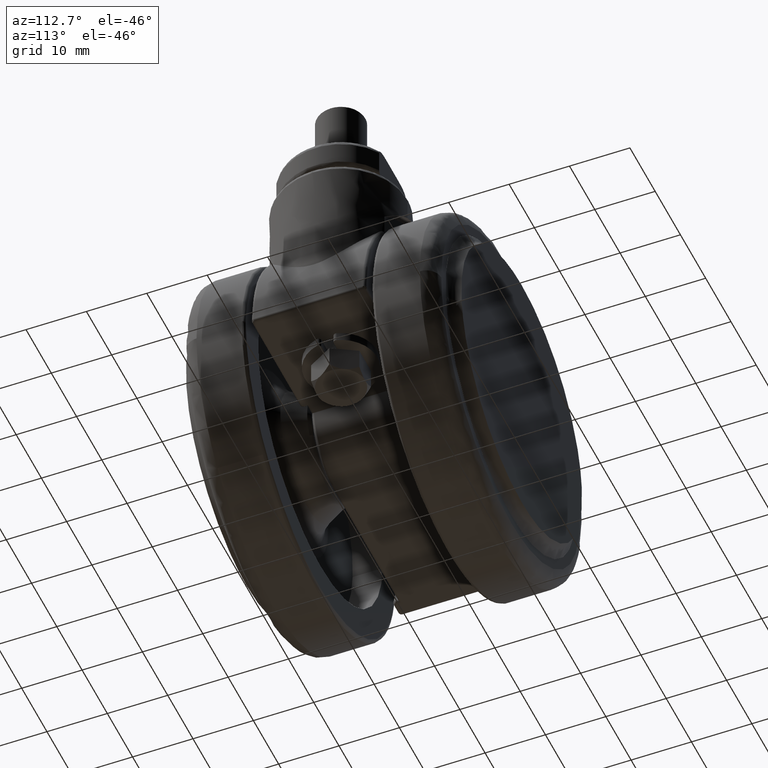
[diagram: clean part render]
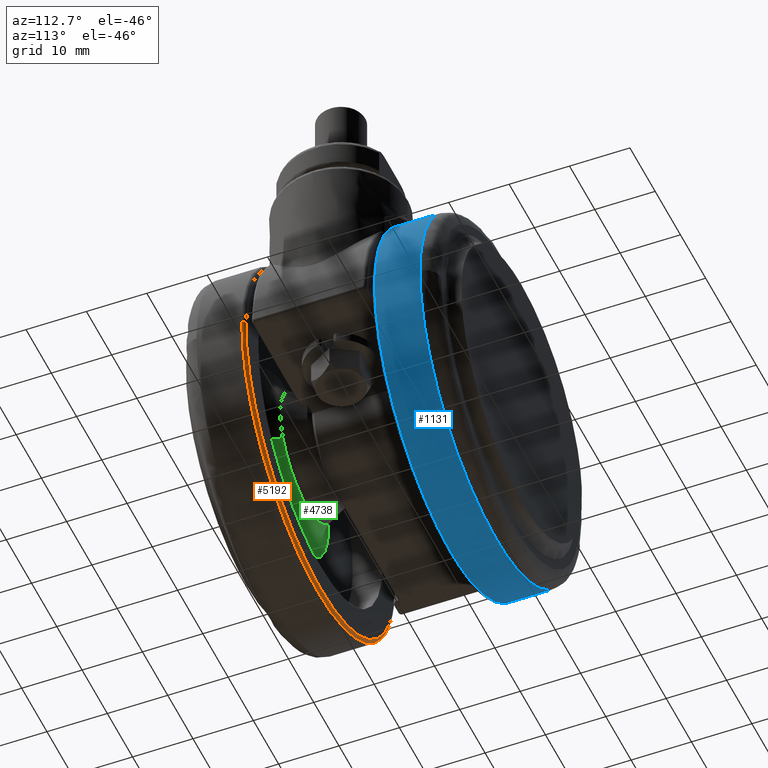
[diagram: same view with three faces highlighted in distinct colors, each labeled with its STEP entity id]
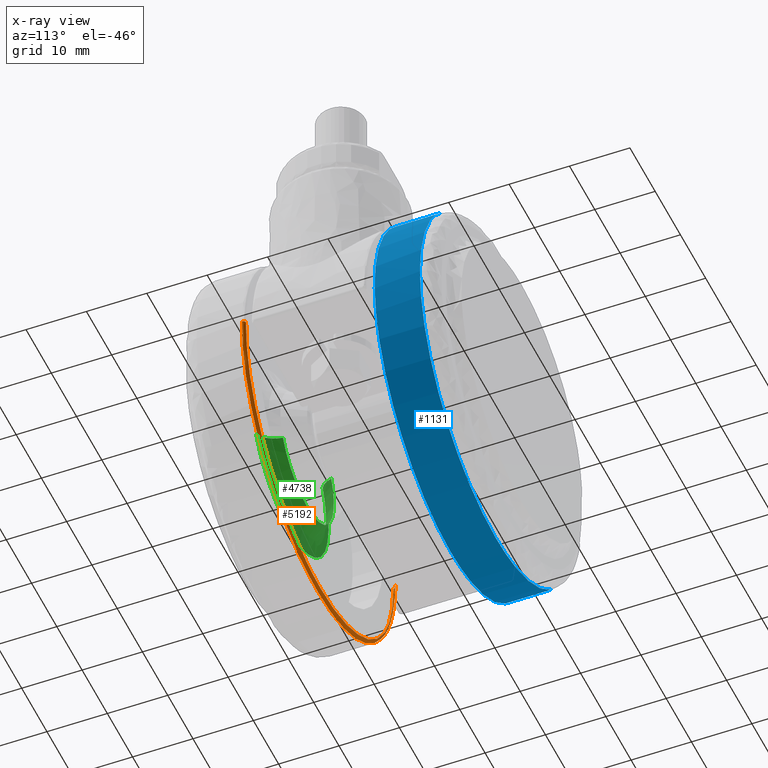
[diagram: x-ray of the same camera — body ghosted, the three highlighted faces saturated]
A machine part, auxiliary view with three faces highlighted in distinct colors.
The next image is the same camera in x-ray (body ghosted, the three faces saturated) — at least one of them is partly hidden behind the body in this view.
Their STEP definitions:

[orange] entity #5192 — the highlighted face is a freeform B-spline surface patch.
#5013=CARTESIAN_POINT('',(29.490683594620560,-10.500000000000000,0.741337815947020));
#5014=VERTEX_POINT('',#5013);
#5028=CARTESIAN_POINT('',(0.0,-10.500000000000000,-29.500000000000600));
#5029=VERTEX_POINT('',#5028);
#5030=CARTESIAN_POINT('',(29.490683594620563,-10.500000000000002,0.741337815947020));
#5031=CARTESIAN_POINT('',(29.500000010699718,-10.499999999999995,0.370727447957652));
#5032=CARTESIAN_POINT('',(29.500000010632071,-10.500000000000000,2.672554E-010));
#5033=CARTESIAN_POINT('',(29.500000005249529,-10.499999999999998,-29.499999999868656));
#5034=CARTESIAN_POINT('',(0.0,-10.500000000000000,-29.500000000000600));
#5042=(BOUNDED_CURVE()B_SPLINE_CURVE(2,(#5030,#5031,#5032,#5033,#5034),.UNSPECIFIED.,.F.,.U.)B_SPLINE_CURVE_WITH_KNOTS((3,2,3),(0.245579891769227,0.250000000000000,0.500000000000000),.UNSPECIFIED.)CURVE()GEOMETRIC_REPRESENTATION_ITEM()RATIONAL_B_SPLINE_CURVE((0.989826157680263,0.994821521091140,1.0,0.707106781186548,1.0))REPRESENTATION_ITEM(''));
#5043=EDGE_CURVE('',#5014,#5029,#5042,.T.);
#5045=CARTESIAN_POINT('',(-29.490683594620560,-10.500000000000000,-0.741337815947009));
#5046=VERTEX_POINT('',#5045);
#5047=CARTESIAN_POINT('',(0.0,-10.500000000000000,-29.500000000000600));
#5048=CARTESIAN_POINT('',(-28.767747352616720,-10.500000000000002,-29.500000000135913));
#5049=CARTESIAN_POINT('',(-29.490683594620567,-10.499999999999998,-0.741337815947009));
#5057=(BOUNDED_CURVE()B_SPLINE_CURVE(2,(#5047,#5048,#5049),.UNSPECIFIED.,.F.,.U.)B_SPLINE_CURVE_WITH_KNOTS((3,3),(0.500000000000000,0.745579891769227),.UNSPECIFIED.)CURVE()GEOMETRIC_REPRESENTATION_ITEM()RATIONAL_B_SPLINE_CURVE((1.0,0.712285260095408,0.989826157680263))REPRESENTATION_ITEM(''));
#5058=EDGE_CURVE('',#5029,#5046,#5057,.T.);
#5084=CARTESIAN_POINT('',(29.968233406904883,-11.034862092272224,1.592275535265795));
#5085=CARTESIAN_POINT('',(29.978709941632765,-11.034862092272233,1.175515234869906));
#5086=CARTESIAN_POINT('',(30.743181500438990,-11.034862092272235,-29.235436932760621));
#5087=CARTESIAN_POINT('',(0.753872283839183,-11.034862092272228,-29.989309216599803));
#5088=CARTESIAN_POINT('',(-29.235436932760621,-11.034862092272235,-30.743181500438990));
#5089=CARTESIAN_POINT('',(-29.999908491565389,-11.034862092272228,-0.332229332866151));
#5090=CARTESIAN_POINT('',(-30.010385026291861,-11.034862092272224,0.084530967473374));
#5091=CARTESIAN_POINT('',(30.008279049219894,-10.461332159253640,1.594403244820323));
#5092=CARTESIAN_POINT('',(30.018769583423705,-10.461332159253638,1.177086040262145));
#5093=CARTESIAN_POINT('',(30.784262682411775,-10.461332159253640,-29.274503361349712));
#5094=CARTESIAN_POINT('',(0.754879660531026,-10.461332159253640,-30.029383021880751));
#5095=CARTESIAN_POINT('',(-29.274503361349712,-10.461332159253640,-30.784262682411775));
#5096=CARTESIAN_POINT('',(-30.039996460336322,-10.461332159253640,-0.332673280857674));
#5097=CARTESIAN_POINT('',(-30.050486994538733,-10.461332159253640,0.084643923644063));
#5098=CARTESIAN_POINT('',(29.435318222107746,-10.501203824725025,1.563960625954904));
#5099=CARTESIAN_POINT('',(29.445608456082937,-10.501203824725028,1.154611436166902));
#5100=CARTESIAN_POINT('',(30.196485669953908,-10.501203824725026,-28.715552825342474));
#5101=CARTESIAN_POINT('',(0.740466422305715,-10.501203824725026,-29.456019247648204));
#5102=CARTESIAN_POINT('',(-28.715552825342474,-10.501203824725026,-30.196485669953908));
#5103=CARTESIAN_POINT('',(-29.466430039212035,-10.501203824725026,-0.326321408501193));
#5104=CARTESIAN_POINT('',(-29.476720273185833,-10.501203824725026,0.083027781231445));
#5112=(BOUNDED_SURFACE()B_SPLINE_SURFACE(2,2,((#5084,#5091,#5098),(#5085,#5092,#5099),(#5086,#5093,#5100),(#5087,#5094,#5101),(#5088,#5095,#5102),(#5089,#5096,#5103),(#5090,#5097,#5104)),.UNSPECIFIED.,.F.,.F.,.U.)B_SPLINE_SURFACE_WITH_KNOTS((3,1,2,1,3),(3,3),(0.0,0.994072227077429,50.697683575064197,100.401294923051000,101.395367149991600),(0.0,0.911363569842717),.UNSPECIFIED.)GEOMETRIC_REPRESENTATION_ITEM()RATIONAL_B_SPLINE_SURFACE(((0.921564716011958,0.606435493453131,0.926697837807704),(0.916228828699381,0.602924213779344,0.921332229566160),(0.644098575789570,0.423848950436964,0.647686209279166),(0.910892941386805,0.599412934105556,0.915966621324616),(0.644098575789570,0.423848950436964,0.647686209279166),(0.916228828698647,0.602924213778861,0.921332229565421),(0.921564716010489,0.606435493452165,0.926697837806227)))REPRESENTATION_ITEM('')SURFACE());
#5113=ORIENTED_EDGE('',*,*,#5043,.F.);
#5114=CARTESIAN_POINT('',(29.990525678498560,-10.999999999857030,0.753902863317289));
#5115=VERTEX_POINT('',#5114);
#5116=CARTESIAN_POINT('',(29.990525678498560,-10.999999999857028,0.753902863317289));
#5117=CARTESIAN_POINT('',(29.990525678354615,-10.500000010769085,0.753902863354081));
#5118=CARTESIAN_POINT('',(29.490683594620556,-10.500000000000000,0.741337815947020));
#5126=(BOUNDED_CURVE()B_SPLINE_CURVE(2,(#5116,#5117,#5118),.UNSPECIFIED.,.F.,.U.)B_SPLINE_CURVE_WITH_KNOTS((3,3),(-1.723441281690360,-0.263586901219039),.UNSPECIFIED.)CURVE()GEOMETRIC_REPRESENTATION_ITEM()RATIONAL_B_SPLINE_CURVE((0.883897567034902,0.626638731218558,0.888510401065265))REPRESENTATION_ITEM(''));
#5127=EDGE_CURVE('',#5115,#5014,#5126,.T.);
#5128=ORIENTED_EDGE('',*,*,#5127,.F.);
#5129=CARTESIAN_POINT('',(21.761231919898879,-10.999999999927139,-20.650636438821259));
#5130=VERTEX_POINT('',#5129);
#5131=CARTESIAN_POINT('',(29.990525678498564,-10.999999999857028,0.753902863317289));
#5132=CARTESIAN_POINT('',(29.999999999999996,-10.999999999857900,0.377010963709972));
#5133=CARTESIAN_POINT('',(30.0,-10.999999999858799,-2.631466E-015));
#5134=CARTESIAN_POINT('',(29.999999999999996,-10.999999999887322,-11.968785714438784));
#5135=CARTESIAN_POINT('',(21.761231919898893,-10.999999999927153,-20.650636438821273));
#5143=(BOUNDED_CURVE()B_SPLINE_CURVE(2,(#5131,#5132,#5133,#5134,#5135),.UNSPECIFIED.,.F.,.U.)B_SPLINE_CURVE_WITH_KNOTS((3,2,3),(0.245579891769707,0.250000000000000,0.371049520889213),.UNSPECIFIED.)CURVE()GEOMETRIC_REPRESENTATION_ITEM()RATIONAL_B_SPLINE_CURVE((0.989826157681350,0.994821521091703,1.0,0.858181664763729,0.853699661796709))REPRESENTATION_ITEM(''));
#5144=EDGE_CURVE('',#5115,#5130,#5143,.T.);
#5145=ORIENTED_EDGE('',*,*,#5144,.T.);
#5146=CARTESIAN_POINT('',(0.0,-11.0,-30.0));
#5147=VERTEX_POINT('',#5146);
#5148=CARTESIAN_POINT('',(21.761231919898893,-10.999999999927153,-20.650636438821273));
#5149=CARTESIAN_POINT('',(12.889017858354073,-10.999999999970049,-30.000000000000004));
#5150=CARTESIAN_POINT('',(0.0,-11.0,-30.0));
#5158=(BOUNDED_CURVE()B_SPLINE_CURVE(2,(#5148,#5149,#5150),.UNSPECIFIED.,.F.,.U.)B_SPLINE_CURVE_WITH_KNOTS((3,3),(0.371049520889213,0.500000000000000),.UNSPECIFIED.)CURVE()GEOMETRIC_REPRESENTATION_ITEM()RATIONAL_B_SPLINE_CURVE((0.853699661796709,0.848925116422819,1.0))REPRESENTATION_ITEM(''));
#5159=EDGE_CURVE('',#5130,#5147,#5158,.T.);
#5160=ORIENTED_EDGE('',*,*,#5159,.T.);
#5161=CARTESIAN_POINT('',(-29.990525678498560,-10.999999999857030,-0.753902863317287));
#5162=VERTEX_POINT('',#5161);
#5163=CARTESIAN_POINT('',(0.0,-11.0,-30.0));
#5164=CARTESIAN_POINT('',(-29.255336285402727,-10.999999999928514,-30.0));
#5165=CARTESIAN_POINT('',(-29.990525678498564,-10.999999999857028,-0.753902863317287));
#5173=(BOUNDED_CURVE()B_SPLINE_CURVE(2,(#5163,#5164,#5165),.UNSPECIFIED.,.F.,.U.)B_SPLINE_CURVE_WITH_KNOTS((3,3),(0.500000000000000,0.745579891769707),.UNSPECIFIED.)CURVE()GEOMETRIC_REPRESENTATION_ITEM()RATIONAL_B_SPLINE_CURVE((1.0,0.712285260094844,0.989826157681350))REPRESENTATION_ITEM(''));
#5174=EDGE_CURVE('',#5147,#5162,#5173,.T.);
#5175=ORIENTED_EDGE('',*,*,#5174,.T.);
#5176=CARTESIAN_POINT('',(-29.990525678498567,-10.999999999857028,-0.753902863317287));
#5177=CARTESIAN_POINT('',(-29.990525678354611,-10.500000010769089,-0.753902863354074));
#5178=CARTESIAN_POINT('',(-29.490683594620570,-10.500000000000002,-0.741337815947009));
#5186=(BOUNDED_CURVE()B_SPLINE_CURVE(2,(#5176,#5177,#5178),.UNSPECIFIED.,.F.,.U.)B_SPLINE_CURVE_WITH_KNOTS((3,3),(-1.723441281690361,-0.263586901219044),.UNSPECIFIED.)CURVE()GEOMETRIC_REPRESENTATION_ITEM()RATIONAL_B_SPLINE_CURVE((0.883897567034902,0.626638731218559,0.888510401065263))REPRESENTATION_ITEM(''));
#5187=EDGE_CURVE('',#5162,#5046,#5186,.T.);
#5188=ORIENTED_EDGE('',*,*,#5187,.T.);
#5189=ORIENTED_EDGE('',*,*,#5058,.F.);
#5190=EDGE_LOOP('',(#5113,#5128,#5145,#5160,#5175,#5188,#5189));
#5191=FACE_OUTER_BOUND('',#5190,.T.);
#5192=ADVANCED_FACE('',(#5191),#5112,.T.);

[blue] entity #1131 — the highlighted face is a freeform B-spline surface patch.
#906=CARTESIAN_POINT('',(-21.761231919898879,10.999999999927139,-20.650636438821259));
#907=VERTEX_POINT('',#906);
#923=CARTESIAN_POINT('',(1.347067E-015,11.0,-30.0));
#924=VERTEX_POINT('',#923);
#925=CARTESIAN_POINT('',(-21.761231919898893,10.999999999927157,-20.650636438821273));
#926=CARTESIAN_POINT('',(-12.889017858354073,10.999999999970051,-30.000000000000004));
#927=CARTESIAN_POINT('',(1.347067E-015,11.0,-30.0));
#935=(BOUNDED_CURVE()B_SPLINE_CURVE(2,(#925,#926,#927),.UNSPECIFIED.,.F.,.U.)B_SPLINE_CURVE_WITH_KNOTS((3,3),(0.371049520889213,0.500000000000000),.UNSPECIFIED.)CURVE()GEOMETRIC_REPRESENTATION_ITEM()RATIONAL_B_SPLINE_CURVE((0.853699661796709,0.848925116422819,1.0))REPRESENTATION_ITEM(''));
#936=EDGE_CURVE('',#907,#924,#935,.T.);
#938=CARTESIAN_POINT('',(29.990525678498560,10.999999999857030,-0.753902863317287));
#939=VERTEX_POINT('',#938);
#940=CARTESIAN_POINT('',(1.347067E-015,11.0,-30.0));
#941=CARTESIAN_POINT('',(29.255336285402727,10.999999999928511,-30.0));
#942=CARTESIAN_POINT('',(29.990525678498564,10.999999999857028,-0.753902863317287));
#950=(BOUNDED_CURVE()B_SPLINE_CURVE(2,(#940,#941,#942),.UNSPECIFIED.,.F.,.U.)B_SPLINE_CURVE_WITH_KNOTS((3,3),(0.500000000000000,0.745579891769707),.UNSPECIFIED.)CURVE()GEOMETRIC_REPRESENTATION_ITEM()RATIONAL_B_SPLINE_CURVE((1.0,0.712285260094844,0.989826157681350))REPRESENTATION_ITEM(''));
#951=EDGE_CURVE('',#924,#939,#950,.T.);
#1002=CARTESIAN_POINT('',(21.761231919898879,10.999999999927130,20.650636438821259));
#1003=VERTEX_POINT('',#1002);
#1004=CARTESIAN_POINT('',(29.990525678498564,10.999999999857028,-0.753902863317287));
#1005=CARTESIAN_POINT('',(29.999999999999996,10.999999999857900,-0.377010963709973));
#1006=CARTESIAN_POINT('',(30.0,10.999999999858799,-3.289332E-016));
#1007=CARTESIAN_POINT('',(29.999999999999996,10.999999999887317,11.968785714438772));
#1008=CARTESIAN_POINT('',(21.761231919898893,10.999999999927150,20.650636438821273));
#1016=(BOUNDED_CURVE()B_SPLINE_CURVE(2,(#1004,#1005,#1006,#1007,#1008),.UNSPECIFIED.,.F.,.U.)B_SPLINE_CURVE_WITH_KNOTS((3,2,3),(0.745579891769707,0.750000000000000,0.871049520889213),.UNSPECIFIED.)CURVE()GEOMETRIC_REPRESENTATION_ITEM()RATIONAL_B_SPLINE_CURVE((0.989826157681350,0.994821521091703,1.0,0.858181664763729,0.853699661796709))REPRESENTATION_ITEM(''));
#1017=EDGE_CURVE('',#939,#1003,#1016,.T.);
#1051=CARTESIAN_POINT('',(-21.761231130368621,18.687500000279488,-20.650637270812609));
#1052=CARTESIAN_POINT('',(-1.110593859556006,18.687500000279481,-42.411868401181231));
#1053=CARTESIAN_POINT('',(20.650637270812620,18.687500000279481,-21.761231130368621));
#1054=CARTESIAN_POINT('',(42.411868401181231,18.687500000279481,-1.110593859556008));
#1055=CARTESIAN_POINT('',(21.761231130368628,18.687500000279481,20.650637270812609));
#1056=CARTESIAN_POINT('',(-21.761231130368621,10.807812499846470,-20.650637270812609));
#1057=CARTESIAN_POINT('',(-1.110593859556007,10.807812499846467,-42.411868401181231));
#1058=CARTESIAN_POINT('',(20.650637270812609,10.807812499846470,-21.761231130368621));
#1059=CARTESIAN_POINT('',(42.411868401181231,10.807812499846461,-1.110593859556008));
#1060=CARTESIAN_POINT('',(21.761231130368621,10.807812499846460,20.650637270812609));
#1068=(BOUNDED_SURFACE()B_SPLINE_SURFACE(2,1,((#1051,#1056),(#1052,#1057),(#1053,#1058),(#1054,#1059),(#1055,#1060)),.UNSPECIFIED.,.F.,.F.,.U.)B_SPLINE_SURFACE_WITH_KNOTS((3,2,3),(2,2),(0.0,49.705627484771391,99.411254969542782),(0.0,7.879687500433019),.UNSPECIFIED.)GEOMETRIC_REPRESENTATION_ITEM()RATIONAL_B_SPLINE_SURFACE(((1.0,1.0),(0.707106781186548,0.707106781186548),(1.0,1.0),(0.707106781186548,0.707106781186548),(1.0,1.0)))REPRESENTATION_ITEM('')SURFACE());
#1069=ORIENTED_EDGE('',*,*,#936,.F.);
#1070=CARTESIAN_POINT('',(-21.761231910157260,18.500000000139579,-20.650636449086779));
#1071=VERTEX_POINT('',#1070);
#1072=CARTESIAN_POINT('',(-21.761231910157260,18.500000000139579,-20.650636449086779));
#1073=CARTESIAN_POINT('',(-21.761231919898879,10.999999999927139,-20.650636438821259));
#1074=QUASI_UNIFORM_CURVE('',1,(#1072,#1073),.UNSPECIFIED.,.F.,.U.);
#1075=EDGE_CURVE('',#1071,#907,#1074,.T.);
#1076=ORIENTED_EDGE('',*,*,#1075,.F.);
#1077=CARTESIAN_POINT('',(2.265522E-015,18.500000000000000,-30.0));
#1078=VERTEX_POINT('',#1077);
#1079=CARTESIAN_POINT('',(-21.761231910157278,18.500000000139583,-20.650636449086800));
#1080=CARTESIAN_POINT('',(-12.889017849971932,18.500000000057831,-29.999999999999993));
#1081=CARTESIAN_POINT('',(2.265522E-015,18.500000000000000,-30.0));
#1089=(BOUNDED_CURVE()B_SPLINE_CURVE(2,(#1079,#1080,#1081),.UNSPECIFIED.,.F.,.U.)B_SPLINE_CURVE_WITH_KNOTS((3,3),(0.371049520960404,0.500000000000000),.UNSPECIFIED.)CURVE()GEOMETRIC_REPRESENTATION_ITEM()RATIONAL_B_SPLINE_CURVE((0.853699661791437,0.848925116506225,1.0))REPRESENTATION_ITEM(''));
#1090=EDGE_CURVE('',#1071,#1078,#1089,.T.);
#1091=ORIENTED_EDGE('',*,*,#1090,.T.);
#1092=CARTESIAN_POINT('',(30.0,18.500000000269171,-1.416014E-014));
#1093=VERTEX_POINT('',#1092);
#1094=CARTESIAN_POINT('',(2.265522E-015,18.500000000000000,-30.0));
#1095=CARTESIAN_POINT('',(29.999999999999975,18.500000000134591,-30.000000000000004));
#1096=CARTESIAN_POINT('',(29.999999999999996,18.500000000269175,-1.416014E-014));
#1104=(BOUNDED_CURVE()B_SPLINE_CURVE(2,(#1094,#1095,#1096),.UNSPECIFIED.,.F.,.U.)B_SPLINE_CURVE_WITH_KNOTS((3,3),(0.500000000000000,0.750000000000000),.UNSPECIFIED.)CURVE()GEOMETRIC_REPRESENTATION_ITEM()RATIONAL_B_SPLINE_CURVE((1.0,0.707106781186548,1.000000000000000))REPRESENTATION_ITEM(''));
#1105=EDGE_CURVE('',#1078,#1093,#1104,.T.);
#1106=ORIENTED_EDGE('',*,*,#1105,.T.);
#1107=CARTESIAN_POINT('',(21.761231910157271,18.500000000139561,20.650636449086779));
#1108=VERTEX_POINT('',#1107);
#1109=CARTESIAN_POINT('',(30.000000000000011,18.500000000269178,-1.416014E-014));
#1110=CARTESIAN_POINT('',(30.000000000000004,18.500000000215476,11.968785722641076));
#1111=CARTESIAN_POINT('',(21.761231910157274,18.500000000139565,20.650636449086807));
#1119=(BOUNDED_CURVE()B_SPLINE_CURVE(2,(#1109,#1110,#1111),.UNSPECIFIED.,.F.,.U.)B_SPLINE_CURVE_WITH_KNOTS((3,3),(0.750000000000000,0.871049520960404),.UNSPECIFIED.)CURVE()GEOMETRIC_REPRESENTATION_ITEM()RATIONAL_B_SPLINE_CURVE((1.0,0.858181664680323,0.853699661791437))REPRESENTATION_ITEM(''));
#1120=EDGE_CURVE('',#1093,#1108,#1119,.T.);
#1121=ORIENTED_EDGE('',*,*,#1120,.T.);
#1122=CARTESIAN_POINT('',(21.761231910157271,18.500000000139561,20.650636449086779));
#1123=CARTESIAN_POINT('',(21.761231919898879,10.999999999927130,20.650636438821259));
#1124=QUASI_UNIFORM_CURVE('',1,(#1122,#1123),.UNSPECIFIED.,.F.,.U.);
#1125=EDGE_CURVE('',#1108,#1003,#1124,.T.);
#1126=ORIENTED_EDGE('',*,*,#1125,.T.);
#1127=ORIENTED_EDGE('',*,*,#1017,.F.);
#1128=ORIENTED_EDGE('',*,*,#951,.F.);
#1129=EDGE_LOOP('',(#1069,#1076,#1091,#1106,#1121,#1126,#1127,#1128));
#1130=FACE_OUTER_BOUND('',#1129,.T.);
#1131=ADVANCED_FACE('',(#1130),#1068,.T.);

[green] entity #4738 — the highlighted face is a freeform B-spline surface patch.
#4511=CARTESIAN_POINT('',(-8.955159037467610,-12.736067977525090,-5.705065503577836));
#4512=VERTEX_POINT('',#4511);
#4518=CARTESIAN_POINT('',(-9.549915530811349,-12.736067977552500,4.641310067338404));
#4519=VERTEX_POINT('',#4518);
#4520=CARTESIAN_POINT('',(-8.955159037467610,-12.736067977525089,-5.705065503577836));
#4521=CARTESIAN_POINT('',(-10.618033988767447,-12.736067977534365,-3.094874675984306));
#4522=CARTESIAN_POINT('',(-10.618033988770220,-12.736067977542289,8.731863E-012));
#4523=CARTESIAN_POINT('',(-10.618033988772405,-12.736067977548547,2.443559668754254));
#4524=CARTESIAN_POINT('',(-9.549915530811349,-12.736067977552503,4.641310067338405));
#4532=(BOUNDED_CURVE()B_SPLINE_CURVE(2,(#4520,#4521,#4522,#4523,#4524),.UNSPECIFIED.,.F.,.U.)B_SPLINE_CURVE_WITH_KNOTS((3,2,3),(0.658049923285658,0.750000000000000,0.824283295446909),.UNSPECIFIED.)CURVE()GEOMETRIC_REPRESENTATION_ITEM()RATIONAL_B_SPLINE_CURVE((0.863791038911242,0.892273784243970,1.0,0.912971705969936,0.877661399761278))REPRESENTATION_ITEM(''));
#4533=EDGE_CURVE('',#4512,#4519,#4532,.T.);
#4593=CARTESIAN_POINT('',(9.549915530811347,-12.736067977552500,-4.641310067338403));
#4594=VERTEX_POINT('',#4593);
#4610=CARTESIAN_POINT('',(0.0,-12.736067977499680,-10.618033988749900));
#4611=VERTEX_POINT('',#4610);
#4612=CARTESIAN_POINT('',(9.549915530811347,-12.736067977552507,-4.641310067338403));
#4613=CARTESIAN_POINT('',(6.645195712419445,-12.736067977526092,-10.618033988755666));
#4614=CARTESIAN_POINT('',(0.0,-12.736067977499680,-10.618033988749900));
#4622=(BOUNDED_CURVE()B_SPLINE_CURVE(2,(#4612,#4613,#4614),.UNSPECIFIED.,.F.,.U.)B_SPLINE_CURVE_WITH_KNOTS((3,3),(0.324283295446909,0.500000000000000),.UNSPECIFIED.)CURVE()GEOMETRIC_REPRESENTATION_ITEM()RATIONAL_B_SPLINE_CURVE((0.877661399761278,0.794135075216612,1.0))REPRESENTATION_ITEM(''));
#4623=EDGE_CURVE('',#4594,#4611,#4622,.T.);
#4625=CARTESIAN_POINT('',(0.0,-12.736067977499680,-10.618033988749900));
#4626=CARTESIAN_POINT('',(-5.825252923263507,-12.736067977508373,-10.618033988748657));
#4627=CARTESIAN_POINT('',(-8.955159037467610,-12.736067977525089,-5.705065503577836));
#4635=(BOUNDED_CURVE()B_SPLINE_CURVE(2,(#4625,#4626,#4627),.UNSPECIFIED.,.F.,.U.)B_SPLINE_CURVE_WITH_KNOTS((3,3),(0.500000000000000,0.658049923285658),.UNSPECIFIED.)CURVE()GEOMETRIC_REPRESENTATION_ITEM()RATIONAL_B_SPLINE_CURVE((1.0,0.814832996942578,0.863791038911242))REPRESENTATION_ITEM(''));
#4636=EDGE_CURVE('',#4611,#4512,#4635,.T.);
#4644=CARTESIAN_POINT('',(9.579030117666942,-12.500096489598599,-4.328844926532332));
#4645=CARTESIAN_POINT('',(9.515200625888253,-12.500096489598603,-4.460179882831014));
#4646=CARTESIAN_POINT('',(4.857569801244086,-12.500096489598601,-14.043676848950883));
#4647=CARTESIAN_POINT('',(-4.593053523853398,-12.500096489598596,-9.450623325097483));
#4648=CARTESIAN_POINT('',(-14.043676848950881,-12.500096489598601,-4.857569801244092));
#4649=CARTESIAN_POINT('',(-9.386046024303814,-12.500096489598599,4.725927164881751));
#4650=CARTESIAN_POINT('',(-9.322216532522294,-12.500096489598596,4.857262121186261));
#4651=CARTESIAN_POINT('',(10.841745119391977,-15.673633334141709,-4.899476541813754));
#4652=CARTESIAN_POINT('',(10.769501575686174,-15.673633334141716,-5.048124171476244));
#4653=CARTESIAN_POINT('',(5.497898329770659,-15.673633334141714,-15.894924962665746));
#4654=CARTESIAN_POINT('',(-5.198513316447546,-15.673633334141710,-10.696411646218204));
#4655=CARTESIAN_POINT('',(-15.894924962665746,-15.673633334141714,-5.497898329770664));
#4656=CARTESIAN_POINT('',(-10.623321716746950,-15.673633334141707,5.348902461425602));
#4657=CARTESIAN_POINT('',(-10.551078173037945,-15.673633334141710,5.497550091094688));
#4658=CARTESIAN_POINT('',(13.994092181230304,-15.493207718104122,-6.324048906414646));
#4659=CARTESIAN_POINT('',(13.900843096421122,-15.493207718104125,-6.515917338028810));
#4660=CARTESIAN_POINT('',(7.096467882483990,-15.493207718104111,-20.516535178771807));
#4661=CARTESIAN_POINT('',(-6.710033648143914,-15.493207718104125,-13.806501530627907));
#4662=CARTESIAN_POINT('',(-20.516535178771807,-15.493207718104111,-7.096467882484000));
#4663=CARTESIAN_POINT('',(-13.712159964830454,-15.493207718104125,6.904149958267738));
#4664=CARTESIAN_POINT('',(-13.618910880017133,-15.493207718104125,7.096018389890417));
#4672=(BOUNDED_SURFACE()B_SPLINE_SURFACE(2,2,((#4644,#4651,#4658),(#4645,#4652,#4659),(#4646,#4653,#4660),(#4647,#4654,#4661),(#4648,#4655,#4662),(#4649,#4656,#4663),(#4650,#4657,#4664)),.UNSPECIFIED.,.F.,.F.,.U.)B_SPLINE_SURFACE_WITH_KNOTS((3,1,2,1,3),(3,3),(0.0,0.508677499748219,25.942552487474838,51.376427475201460,51.885104974972663),(0.0,6.250937243582712),.UNSPECIFIED.)GEOMETRIC_REPRESENTATION_ITEM()RATIONAL_B_SPLINE_SURFACE(((0.930664622544998,0.764952047805621,0.930290185592629),(0.925276046501690,0.760522952534102,0.924903777550492),(0.650458668289662,0.534639093683866,0.650196967398175),(0.919887470458383,0.756093857262583,0.919517369508356),(0.650458668289662,0.534639093683866,0.650196967398175),(0.925276046501934,0.760522952534302,0.924903777550736),(0.930664622545484,0.764952047806021,0.930290185593116)))REPRESENTATION_ITEM('')SURFACE());
#4673=ORIENTED_EDGE('',*,*,#4623,.F.);
#4674=CARTESIAN_POINT('',(13.572178094426461,-15.500000000000000,-6.596151203855635));
#4675=VERTEX_POINT('',#4674);
#4676=CARTESIAN_POINT('',(9.549915530811347,-12.736067977552498,-4.641310067338403));
#4677=CARTESIAN_POINT('',(10.792863018827173,-15.499999999994159,-5.245389199834549));
#4678=CARTESIAN_POINT('',(13.572178094426462,-15.499999999999998,-6.596151203855635));
#4686=(BOUNDED_CURVE()B_SPLINE_CURVE(2,(#4676,#4677,#4678),.UNSPECIFIED.,.F.,.U.)B_SPLINE_CURVE_WITH_KNOTS((3,3),(-1.646666932631399,-0.354940079530441),.UNSPECIFIED.)CURVE()GEOMETRIC_REPRESENTATION_ITEM()RATIONAL_B_SPLINE_CURVE((0.905685529658860,0.770278994911186,0.905349035032103))REPRESENTATION_ITEM(''));
#4687=EDGE_CURVE('',#4594,#4675,#4686,.T.);
#4688=ORIENTED_EDGE('',*,*,#4687,.T.);
#4689=CARTESIAN_POINT('',(0.0,-15.500000000000000,-15.090169943749450));
#4690=VERTEX_POINT('',#4689);
#4691=CARTESIAN_POINT('',(13.572178094426461,-15.500000000000002,-6.596151203855635));
#4692=CARTESIAN_POINT('',(9.444039519554178,-15.500000000000000,-15.090169943747393));
#4693=CARTESIAN_POINT('',(0.0,-15.500000000000000,-15.090169943749450));
#4701=(BOUNDED_CURVE()B_SPLINE_CURVE(2,(#4691,#4692,#4693),.UNSPECIFIED.,.F.,.U.)B_SPLINE_CURVE_WITH_KNOTS((3,3),(0.324283295446822,0.500000000000000),.UNSPECIFIED.)CURVE()GEOMETRIC_REPRESENTATION_ITEM()RATIONAL_B_SPLINE_CURVE((0.877661399761361,0.794135075216509,1.0))REPRESENTATION_ITEM(''));
#4702=EDGE_CURVE('',#4675,#4690,#4701,.T.);
#4703=ORIENTED_EDGE('',*,*,#4702,.T.);
#4704=CARTESIAN_POINT('',(-13.572178094426461,-15.500000000000000,6.596151203855632));
#4705=VERTEX_POINT('',#4704);
#4706=CARTESIAN_POINT('',(0.0,-15.500000000000000,-15.090169943749450));
#4707=CARTESIAN_POINT('',(-15.090169943746806,-15.500000000000004,-15.090169943750739));
#4708=CARTESIAN_POINT('',(-15.090169943742580,-15.500000000000000,-3.343666E-012));
#4709=CARTESIAN_POINT('',(-15.090169943741600,-15.500000000000004,3.472745586237286));
#4710=CARTESIAN_POINT('',(-13.572178094426461,-15.500000000000002,6.596151203855633));
#4718=(BOUNDED_CURVE()B_SPLINE_CURVE(2,(#4706,#4707,#4708,#4709,#4710),.UNSPECIFIED.,.F.,.U.)B_SPLINE_CURVE_WITH_KNOTS((3,2,3),(0.500000000000000,0.750000000000000,0.824283295446822),.UNSPECIFIED.)CURVE()GEOMETRIC_REPRESENTATION_ITEM()RATIONAL_B_SPLINE_CURVE((1.0,0.707106781186548,1.0,0.912971705970039,0.877661399761361))REPRESENTATION_ITEM(''));
#4719=EDGE_CURVE('',#4690,#4705,#4718,.T.);
#4720=ORIENTED_EDGE('',*,*,#4719,.T.);
#4721=CARTESIAN_POINT('',(-9.549915530811349,-12.736067977552510,4.641310067338405));
#4722=CARTESIAN_POINT('',(-10.792863018827173,-15.499999999994158,5.245389199834549));
#4723=CARTESIAN_POINT('',(-13.572178094426466,-15.500000000000002,6.596151203855632));
#4731=(BOUNDED_CURVE()B_SPLINE_CURVE(2,(#4721,#4722,#4723),.UNSPECIFIED.,.F.,.U.)B_SPLINE_CURVE_WITH_KNOTS((3,3),(-1.646666932631398,-0.354940079530442),.UNSPECIFIED.)CURVE()GEOMETRIC_REPRESENTATION_ITEM()RATIONAL_B_SPLINE_CURVE((0.905685529658860,0.770278994911186,0.905349035032103))REPRESENTATION_ITEM(''));
#4732=EDGE_CURVE('',#4519,#4705,#4731,.T.);
#4733=ORIENTED_EDGE('',*,*,#4732,.F.);
#4734=ORIENTED_EDGE('',*,*,#4533,.F.);
#4735=ORIENTED_EDGE('',*,*,#4636,.F.);
#4736=EDGE_LOOP('',(#4673,#4688,#4703,#4720,#4733,#4734,#4735));
#4737=FACE_OUTER_BOUND('',#4736,.T.);
#4738=ADVANCED_FACE('',(#4737),#4672,.F.);